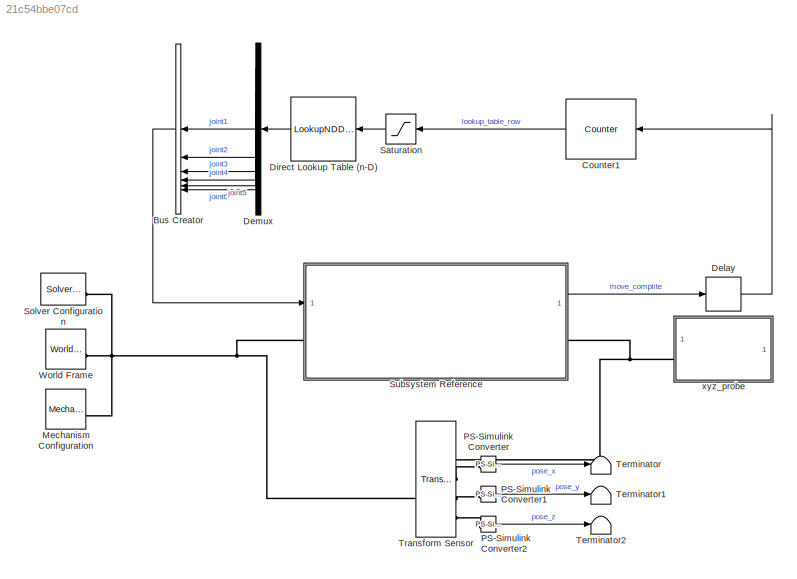
MODEL slx_21c54bbe07cd
KIND model
CONFIG AbsTol = auto
CONFIG EnableMultiTasking = off
CONFIG FixedStep = auto
CONFIG MaxStep = auto
CONFIG MinStep = auto
CONFIG RelTol = 1e-3
CONFIG SampleTimeConstraint = Unconstrained
CONFIG SolverName = VariableStepAuto
CONFIG StartTime = 0.0
CONFIG StopTime = 20.0
BLOCK [BusCreator] Bus Creator
  DisplayOption = bar
  InheritFromInputs = on
  Inputs = joint1,joint2,joint3,joint4,joint5,joint6
  NameLocation = top
BLOCK [Reference] Counter1  REF=dspswit3/Counter
  SourceBlock = dspswit3/Counter
  SourceType = Counter
BLOCK [Delay] Delay
  DelayLength = 1
  InputPortMap = u0
  SampleTime = 1e-2
BLOCK [Demux] Demux
  Outputs = 6
BLOCK [LookupNDDirect] Direct Lookup Table (n-D)
  InputsSelectThisObjectFromTable = Vector
  Table = transpose(robot__.commands)
BLOCK [Reference] Mechanism Configuration  REF=sm_lib/Utilities/Mechanism
Configuration
  SourceBlock = sm_lib/Utilities/Mechanism\nConfiguration
  SourceType = Mechanism\nConfiguration
BLOCK [Reference] PS-Simulink Converter  REF=nesl_utility/PS-Simulink
Converter
  SourceBlock = nesl_utility/PS-Simulink\nConverter
  SourceType = PS-Simulink\nConverter
BLOCK [Reference] PS-Simulink Converter1  REF=nesl_utility/PS-Simulink
Converter
  SourceBlock = nesl_utility/PS-Simulink\nConverter
  SourceType = PS-Simulink\nConverter
BLOCK [Reference] PS-Simulink Converter2  REF=nesl_utility/PS-Simulink
Converter
  SourceBlock = nesl_utility/PS-Simulink\nConverter
  SourceType = PS-Simulink\nConverter
BLOCK [Saturate] Saturation
  LowerLimit = 0
  UpperLimit = robot__.points_count
BLOCK [Reference] Solver Configuration  REF=nesl_utility/Solver
Configuration
  SourceBlock = nesl_utility/Solver\nConfiguration
  SourceType = Solver\nConfiguration
BLOCK [SubSystem] Subsystem Reference
  ReferencedSubsystem = x6_dof_robot
BLOCK [Terminator] Terminator
BLOCK [Terminator] Terminator1
BLOCK [Terminator] Terminator2
BLOCK [Reference] Transform Sensor  REF=sm_lib/Frames and
Transforms/Transform
Sensor
  SourceBlock = sm_lib/Frames and\nTransforms/Transform\nSensor
  SourceType = Transform\nSensor
BLOCK [Reference] World Frame  REF=sm_lib/Frames and
Transforms/World Frame
  SourceBlock = sm_lib/Frames and\nTransforms/World Frame
  SourceType = World Frame
BLOCK [SubSystem] xyz_probe
  ReferencedSubsystem = xyz_probe
  axes_length = 0.1
  axes_radius = 0.005
  offset_vector = [0; 0; 0]
LINE Bus Creator:1 -> Subsystem Reference:1
LINE Counter1:1 -> Saturation:1
LINE Delay:1 -> Counter1:1
LINE Demux:1 -> Bus Creator:1
LINE Demux:2 -> Bus Creator:2
LINE Demux:3 -> Bus Creator:3
LINE Demux:4 -> Bus Creator:4
LINE Demux:5 -> Bus Creator:5
LINE Demux:6 -> Bus Creator:6
LINE Direct Lookup Table (n-D):1 -> Demux:1
LINE PS-Simulink Converter1:1 -> Terminator1:1
LINE PS-Simulink Converter2:1 -> Terminator2:1
LINE PS-Simulink Converter:1 -> Terminator:1
LINE Saturation:1 -> Direct Lookup Table (n-D):1
LINE Subsystem Reference:1 -> Delay:1
PNET net1: Mechanism Configuration:RConn1 -- Solver Configuration:RConn1 -- Subsystem Reference:LConn1 -- Transform Sensor:LConn1 -- World Frame:RConn1
PLINE PS-Simulink Converter1:LConn1 -- Transform Sensor:RConn3
PLINE PS-Simulink Converter2:LConn1 -- Transform Sensor:RConn4
PLINE PS-Simulink Converter:LConn1 -- Transform Sensor:RConn2
PNET net2: Subsystem Reference:RConn1 -- Transform Sensor:RConn1 -- xyz_probe:LConn1
note: PNET lines group multi-terminal physical nets as a canonical sorted terminal list (undirected conserving connections); 2-terminal nets keep the pairwise PLINE form
